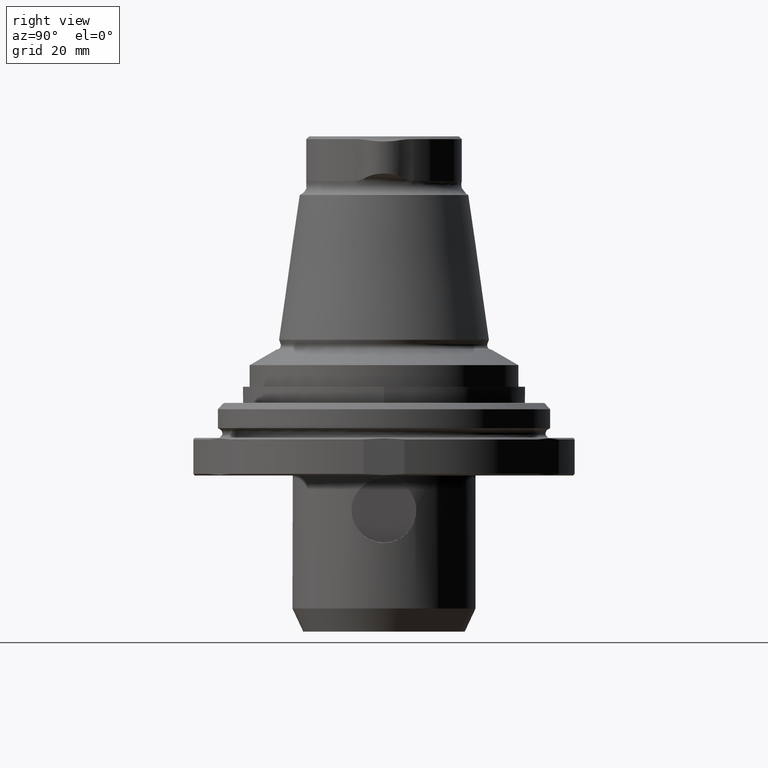
[diagram: clean part render]
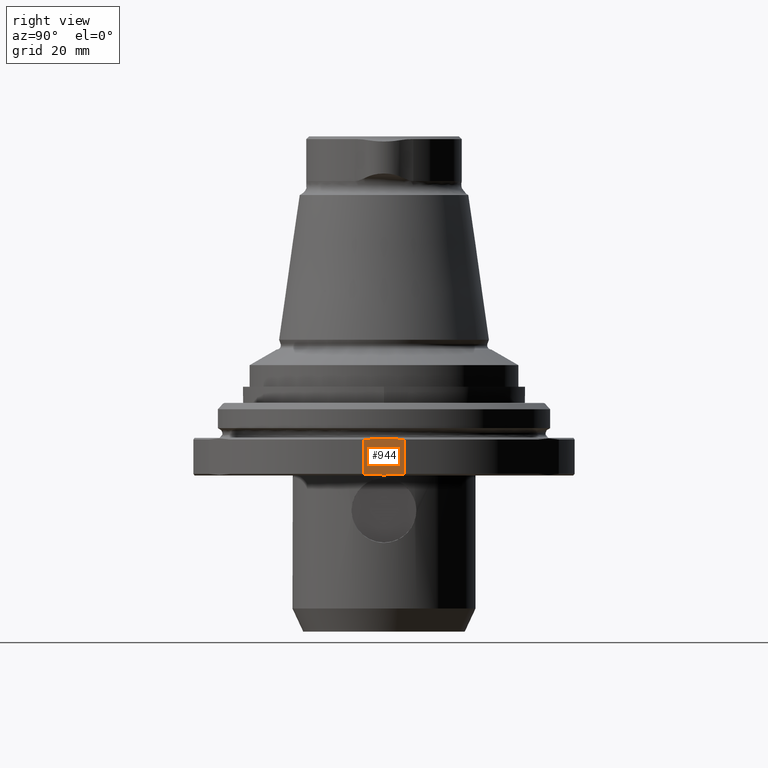
[diagram: same view with one face highlighted and labeled with its STEP entity id]
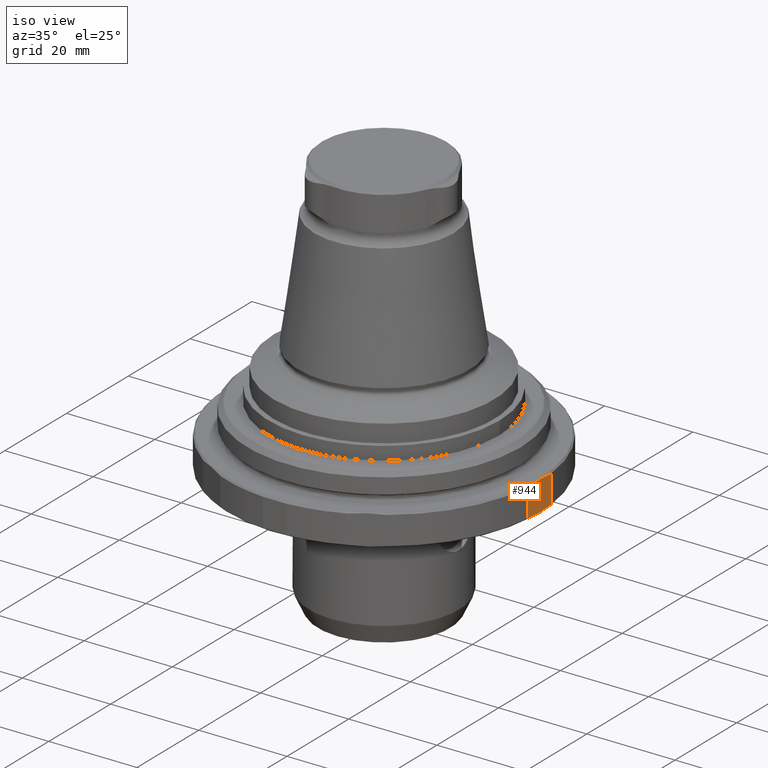
[diagram: same view with one face highlighted and labeled with its STEP entity id]
A machine part, right view. The second image highlights one B-rep face of the part: STEP entity #944.
A second angle (iso view) of the same face is appended — the face is thin or edge-on in the first view.
In plain terms, the highlighted planar face has unit normal (-1, 0, 0).
Its self-contained STEP definition (entity closure, byte-faithful):
#48=LINE('',#1775,#76);
#49=LINE('',#1778,#77);
#76=VECTOR('',#1300,1000.);
#77=VECTOR('',#1305,1000.);
#109=B_SPLINE_CURVE_WITH_KNOTS('',3,(#1665,#1666,#1667,#1668),
 .UNSPECIFIED.,.F.,.F.,(4,4),(0.00301971742095615,0.0105389064051034),
 .UNSPECIFIED.);
#121=B_SPLINE_CURVE_WITH_KNOTS('',3,(#1747,#1748,#1749,#1750),
 .UNSPECIFIED.,.F.,.F.,(4,4),(0.0142564267081391,0.0217467200872314),
 .UNSPECIFIED.);
#374=ORIENTED_EDGE('',*,*,#527,.F.);
#375=ORIENTED_EDGE('',*,*,#515,.F.);
#376=ORIENTED_EDGE('',*,*,#526,.F.);
#377=ORIENTED_EDGE('',*,*,#491,.F.);
#491=EDGE_CURVE('',#598,#599,#109,.T.);
#515=EDGE_CURVE('',#618,#619,#121,.T.);
#526=EDGE_CURVE('',#599,#618,#48,.T.);
#527=EDGE_CURVE('',#619,#598,#49,.F.);
#598=VERTEX_POINT('',#1664);
#599=VERTEX_POINT('',#1669);
#618=VERTEX_POINT('',#1746);
#619=VERTEX_POINT('',#1751);
#753=EDGE_LOOP('',(#374,#375,#376,#377));
#849=FACE_BOUND('',#753,.T.);
#889=PLANE('',#1067);
#944=ADVANCED_FACE('',(#849),#889,.F.);
#1067=AXIS2_PLACEMENT_3D('',#1780,#1307,#1308);
#1300=DIRECTION('',(-5.47430718319515E-16,-9.52839907700963E-18,-1.));
#1305=DIRECTION('',(-5.47430718319515E-16,-9.52839907700963E-18,-1.));
#1307=DIRECTION('',(-1.,9.55131948383603E-16,5.47430716006892E-16));
#1308=DIRECTION('',(-5.47430718319515E-16,-9.52839907700963E-18,-1.));
#1664=CARTESIAN_POINT('',(35.2999999999999,-3.76297754444549,-1.30000000000002));
#1665=CARTESIAN_POINT('',(35.2999999999999,-3.76297754444549,-1.30000000000003));
#1666=CARTESIAN_POINT('',(35.2999999999999,-1.26556050101696,-1.03527537313983));
#1667=CARTESIAN_POINT('',(35.2999999999999,1.24362282730948,-1.03294999360356));
#1668=CARTESIAN_POINT('',(35.2999999999999,3.76297754444523,-1.30000000000003));
#1669=CARTESIAN_POINT('',(35.2999999999999,3.76297754444523,-1.30000000000002));
#1746=CARTESIAN_POINT('',(35.2999999999999,3.76297754444523,-7.70000000000003));
#1747=CARTESIAN_POINT('',(35.2999999999999,3.76297754444523,-7.70000000000003));
#1748=CARTESIAN_POINT('',(35.2999999999999,1.24362282730948,-7.96705000639649));
#1749=CARTESIAN_POINT('',(35.2999999999999,-1.26556050101697,-7.96472462686022));
#1750=CARTESIAN_POINT('',(35.2999999999999,-3.76297754444551,-7.70000000000002));
#1751=CARTESIAN_POINT('',(35.2999999999999,-3.76297754444549,-7.70000000000002));
#1775=CARTESIAN_POINT('',(35.2999999999999,3.76297754444523,-1.00000000000002));
#1778=CARTESIAN_POINT('',(35.2999999999999,-3.76297754444549,-1.00000000000002));
#1780=CARTESIAN_POINT('',(35.2999999999999,-1.31914042347486E-13,-4.50000000000002));